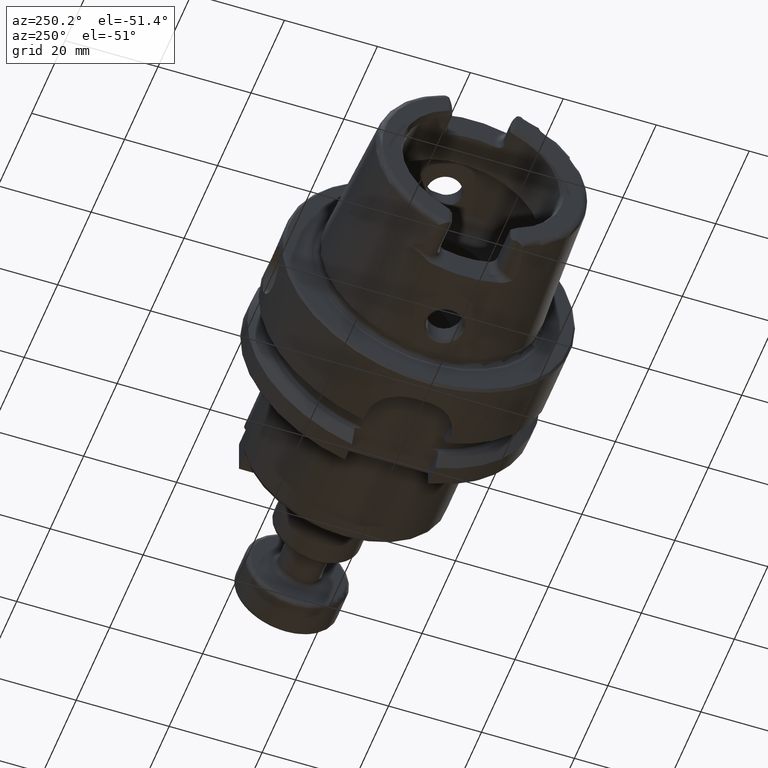
[diagram: clean part render]
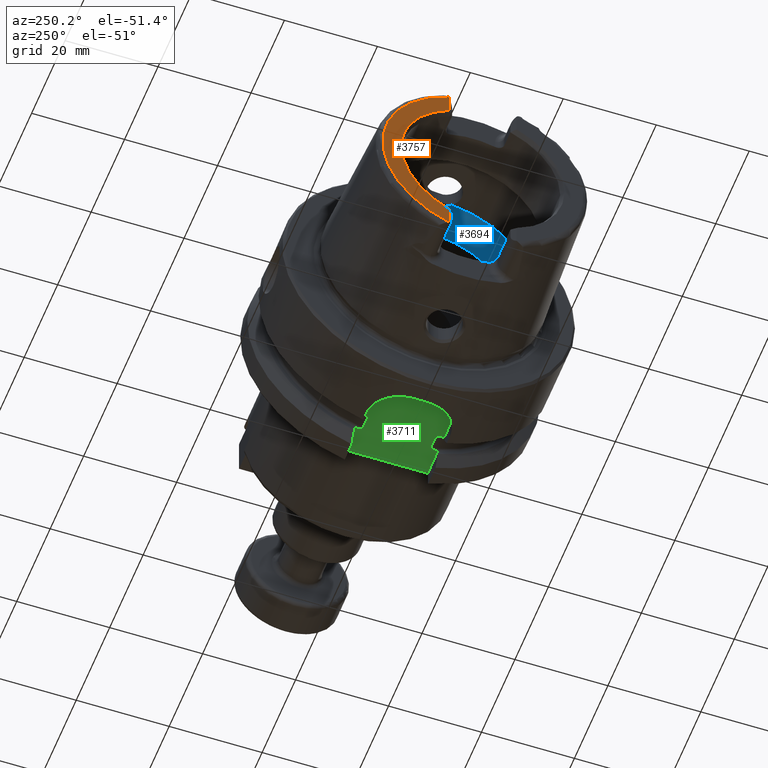
[diagram: same view with three faces highlighted in distinct colors, each labeled with its STEP entity id]
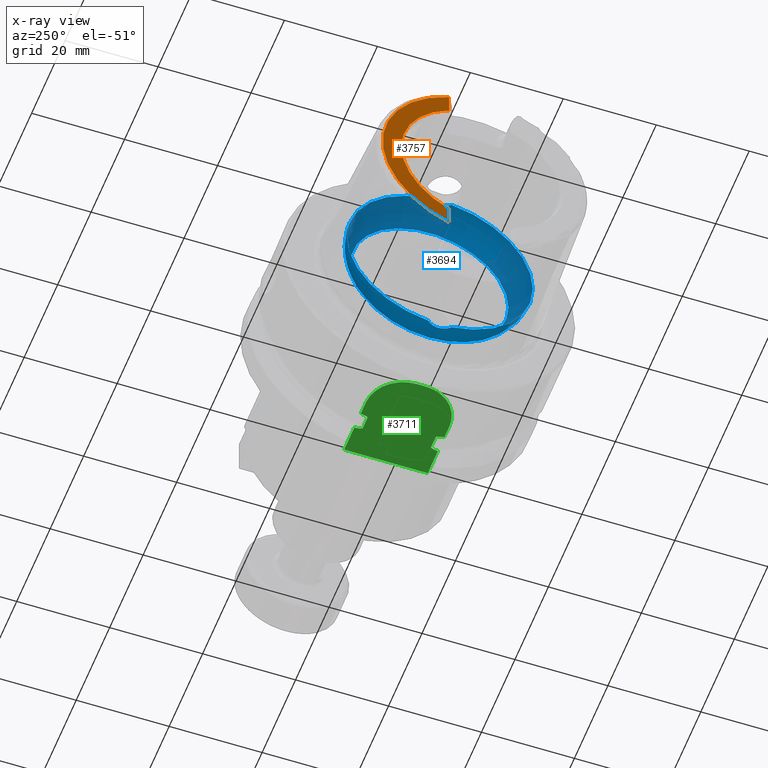
[diagram: x-ray of the same camera — body ghosted, the three highlighted faces saturated]
A machine part, auxiliary view with three faces highlighted in distinct colors.
The next image is the same camera in x-ray (body ghosted, the three faces saturated) — at least one of them is partly hidden behind the body in this view.
Their STEP definitions:

[orange] entity #3757 — the highlighted planar face has unit normal (-1, 0, 0).
#746=PLANE('',#4254);
#954=FACE_OUTER_BOUND('',#1156,.T.);
#1156=EDGE_LOOP('',(#3302,#3303,#3304,#3305,#3306,#3307));
#1289=LINE('',#5944,#1483);
#1299=LINE('',#6037,#1493);
#1483=VECTOR('',#4736,10.);
#1493=VECTOR('',#4774,10.);
#1678=CIRCLE('',#4102,2.88);
#1684=CIRCLE('',#4117,2.88);
#1752=CIRCLE('',#4253,17.5773502691896);
#1753=CIRCLE('',#4255,21.5760400159857);
#1938=VERTEX_POINT('',#5937);
#1941=VERTEX_POINT('',#5942);
#1944=VERTEX_POINT('',#5952);
#1959=VERTEX_POINT('',#6034);
#1960=VERTEX_POINT('',#6036);
#1965=VERTEX_POINT('',#6055);
#2287=EDGE_CURVE('',#1941,#1938,#1289,.T.);
#2291=EDGE_CURVE('',#1944,#1938,#1678,.T.);
#2309=EDGE_CURVE('',#1959,#1960,#1299,.T.);
#2316=EDGE_CURVE('',#1959,#1965,#1684,.T.);
#2511=EDGE_CURVE('',#1960,#1941,#1752,.T.);
#2512=EDGE_CURVE('',#1944,#1965,#1753,.T.);
#3302=ORIENTED_EDGE('',*,*,#2287,.F.);
#3303=ORIENTED_EDGE('',*,*,#2511,.F.);
#3304=ORIENTED_EDGE('',*,*,#2309,.F.);
#3305=ORIENTED_EDGE('',*,*,#2316,.T.);
#3306=ORIENTED_EDGE('',*,*,#2512,.F.);
#3307=ORIENTED_EDGE('',*,*,#2291,.T.);
#3757=ADVANCED_FACE('',(#954),#746,.T.);
#4102=AXIS2_PLACEMENT_3D('',#5953,#4744,#4745);
#4117=AXIS2_PLACEMENT_3D('',#6068,#4783,#4784);
#4253=AXIS2_PLACEMENT_3D('',#7184,#5118,#5119);
#4254=AXIS2_PLACEMENT_3D('',#7185,#5120,#5121);
#4255=AXIS2_PLACEMENT_3D('',#7186,#5122,#5123);
#4736=DIRECTION('',(0.,0.,-1.));
#4744=DIRECTION('center_axis',(-1.,0.,0.));
#4745=DIRECTION('ref_axis',(0.,-0.453346760926793,0.891334232685576));
#4774=DIRECTION('',(0.,1.58830189502884E-16,-1.));
#4783=DIRECTION('center_axis',(-1.,0.,0.));
#4784=DIRECTION('ref_axis',(0.,1.,0.));
#5118=DIRECTION('center_axis',(-1.,0.,0.));
#5119=DIRECTION('ref_axis',(0.,-1.,0.));
#5120=DIRECTION('center_axis',(-1.,0.,0.));
#5121=DIRECTION('ref_axis',(0.,0.,1.));
#5122=DIRECTION('center_axis',(1.,0.,0.));
#5123=DIRECTION('ref_axis',(0.,0.,-1.));
#5937=CARTESIAN_POINT('',(-32.,7.27,-20.1717424229271));
#5942=CARTESIAN_POINT('',(-32.,7.27,-16.003447831195));
#5944=CARTESIAN_POINT('',(-32.,7.27,-5.5));
#5952=CARTESIAN_POINT('',(-32.,7.39118810947246,-20.2705658801576));
#5953=CARTESIAN_POINT('Origin',(-32.,9.15,-17.99));
#6034=CARTESIAN_POINT('',(-32.,7.27,20.1717424229271));
#6036=CARTESIAN_POINT('',(-32.,7.27,16.003447831195));
#6037=CARTESIAN_POINT('',(-32.,7.27,8.995));
#6055=CARTESIAN_POINT('',(-32.,7.39118810947246,20.2705658801576));
#6068=CARTESIAN_POINT('Origin',(-32.,9.15,17.99));
#7184=CARTESIAN_POINT('Origin',(-32.,0.,0.));
#7185=CARTESIAN_POINT('Origin',(-32.,21.5760400159857,0.));
#7186=CARTESIAN_POINT('Origin',(-32.,0.,0.));

[blue] entity #3694 — the highlighted toroidal blend (fillet) surface has major radius 12 mm and minor (blend) radius 8 mm.
#593=TOROIDAL_SURFACE('',#4134,12.,8.);
#641=B_SPLINE_CURVE_WITH_KNOTS('',3,(#6343,#6344,#6345,#6346,#6347,#6348,
#6349,#6350,#6351,#6352,#6353,#6354),.UNSPECIFIED.,.F.,.F.,(4,2,2,2,2,4),
(-0.560647090003115,-0.432465132423936,-0.371738630353782,-0.32053783623797,
-0.287500355516274,-0.280385270121909),.UNSPECIFIED.);
#643=B_SPLINE_CURVE_WITH_KNOTS('',3,(#6387,#6388,#6389,#6390,#6391,#6392,
#6393,#6394,#6395,#6396),.UNSPECIFIED.,.F.,.F.,(4,2,2,2,4),(-0.280385270121909,
-0.256917987419631,-0.21744735037608,-0.138661357565599,0.),
 .UNSPECIFIED.);
#646=B_SPLINE_CURVE_WITH_KNOTS('',3,(#6512,#6513,#6514,#6515,#6516,#6517,
#6518,#6519,#6520,#6521,#6522,#6523),.UNSPECIFIED.,.F.,.F.,(4,2,2,2,2,4),
(-0.560647090003256,-0.432465132424011,-0.371738630353825,-0.32053783623799,
-0.287500355516289,-0.280385270121924),.UNSPECIFIED.);
#648=B_SPLINE_CURVE_WITH_KNOTS('',3,(#6556,#6557,#6558,#6559,#6560,#6561,
#6562,#6563,#6564,#6565),.UNSPECIFIED.,.F.,.F.,(4,2,2,2,4),(-0.280385270121924,
-0.256917987419636,-0.217447350376074,-0.138661357565593,0.),
 .UNSPECIFIED.);
#891=FACE_OUTER_BOUND('',#1092,.T.);
#1092=EDGE_LOOP('',(#2955,#2956,#2957,#2958,#2959,#2960,#2961,#2962,#2963,
#2964,#2965));
#1691=CIRCLE('',#4129,20.);
#1694=CIRCLE('',#4132,20.);
#1695=CIRCLE('',#4133,20.);
#1696=CIRCLE('',#4135,17.);
#1697=CIRCLE('',#4136,17.);
#1698=CIRCLE('',#4137,8.);
#1981=VERTEX_POINT('',#6340);
#1982=VERTEX_POINT('',#6342);
#1983=VERTEX_POINT('',#6355);
#1986=VERTEX_POINT('',#6510);
#1987=VERTEX_POINT('',#6511);
#1988=VERTEX_POINT('',#6524);
#1989=VERTEX_POINT('',#6568);
#1992=VERTEX_POINT('',#6578);
#1993=VERTEX_POINT('',#6579);
#2340=EDGE_CURVE('',#1982,#1981,#641,.T.);
#2342=EDGE_CURVE('',#1981,#1983,#643,.T.);
#2346=EDGE_CURVE('',#1986,#1987,#646,.T.);
#2348=EDGE_CURVE('',#1987,#1988,#648,.T.);
#2350=EDGE_CURVE('',#1989,#1986,#1691,.T.);
#2354=EDGE_CURVE('',#1983,#1989,#1694,.T.);
#2355=EDGE_CURVE('',#1988,#1982,#1695,.T.);
#2356=EDGE_CURVE('',#1992,#1993,#1696,.T.);
#2357=EDGE_CURVE('',#1993,#1992,#1697,.T.);
#2358=EDGE_CURVE('',#1993,#1981,#1698,.T.);
#2955=ORIENTED_EDGE('',*,*,#2356,.F.);
#2956=ORIENTED_EDGE('',*,*,#2357,.F.);
#2957=ORIENTED_EDGE('',*,*,#2358,.T.);
#2958=ORIENTED_EDGE('',*,*,#2342,.T.);
#2959=ORIENTED_EDGE('',*,*,#2354,.T.);
#2960=ORIENTED_EDGE('',*,*,#2350,.T.);
#2961=ORIENTED_EDGE('',*,*,#2346,.T.);
#2962=ORIENTED_EDGE('',*,*,#2348,.T.);
#2963=ORIENTED_EDGE('',*,*,#2355,.T.);
#2964=ORIENTED_EDGE('',*,*,#2340,.T.);
#2965=ORIENTED_EDGE('',*,*,#2358,.F.);
#3694=ADVANCED_FACE('',(#891),#593,.F.);
#4129=AXIS2_PLACEMENT_3D('',#6569,#4814,#4815);
#4132=AXIS2_PLACEMENT_3D('',#6575,#4821,#4822);
#4133=AXIS2_PLACEMENT_3D('',#6576,#4823,#4824);
#4134=AXIS2_PLACEMENT_3D('',#6577,#4825,#4826);
#4135=AXIS2_PLACEMENT_3D('',#6580,#4827,#4828);
#4136=AXIS2_PLACEMENT_3D('',#6581,#4829,#4830);
#4137=AXIS2_PLACEMENT_3D('',#6582,#4831,#4832);
#4814=DIRECTION('center_axis',(-1.,0.,0.));
#4815=DIRECTION('ref_axis',(0.,0.,1.));
#4821=DIRECTION('center_axis',(-1.,0.,0.));
#4822=DIRECTION('ref_axis',(0.,0.,1.));
#4823=DIRECTION('center_axis',(-1.,0.,0.));
#4824=DIRECTION('ref_axis',(0.,0.,1.));
#4825=DIRECTION('center_axis',(-1.,0.,0.));
#4826=DIRECTION('ref_axis',(0.,0.,1.));
#4827=DIRECTION('center_axis',(-1.,0.,0.));
#4828=DIRECTION('ref_axis',(0.,0.,1.));
#4829=DIRECTION('center_axis',(-1.,0.,0.));
#4830=DIRECTION('ref_axis',(0.,0.,1.));
#4831=DIRECTION('center_axis',(0.,1.,-1.22464679914735E-16));
#4832=DIRECTION('ref_axis',(0.,-1.22464679914735E-16,-1.));
#6340=CARTESIAN_POINT('',(-5.25,3.07683831259085E-16,-19.9378825251564));
#6342=CARTESIAN_POINT('',(-6.2449979983984,2.54410376580264,-19.8375284758165));
#6343=CARTESIAN_POINT('Ctrl Pts',(-6.2449979983984,2.54410376580263,-19.8375284758165));
#6344=CARTESIAN_POINT('Ctrl Pts',(-5.9563832733696,2.23156378381208,-19.877610794847));
#6345=CARTESIAN_POINT('Ctrl Pts',(-5.72238184052007,1.87139505615745,-19.9007586679726));
#6346=CARTESIAN_POINT('Ctrl Pts',(-5.47415257397377,1.29299577523533,-19.9221291461079));
#6347=CARTESIAN_POINT('Ctrl Pts',(-5.40951125063364,1.10084807786171,-19.9269865934584));
#6348=CARTESIAN_POINT('Ctrl Pts',(-5.31953029252225,0.738763665580492,-19.9333991732415));
#6349=CARTESIAN_POINT('Ctrl Pts',(-5.28971989928313,0.57048989328573,-19.9353426103026));
#6350=CARTESIAN_POINT('Ctrl Pts',(-5.25970604483208,0.291260075331645,-19.9372753146995));
#6351=CARTESIAN_POINT('Ctrl Pts',(-5.25276504295341,0.181279004510485,-19.9377089305339));
#6352=CARTESIAN_POINT('Ctrl Pts',(-5.25022501552319,0.0474369436209427,
-19.9378684144199));
#6353=CARTESIAN_POINT('Ctrl Pts',(-5.25,0.0237178817918345,-19.9378825251564));
#6354=CARTESIAN_POINT('Ctrl Pts',(-5.25,1.73633857888389E-16,-19.9378825251564));
#6355=CARTESIAN_POINT('',(-6.2449979983984,-2.54410376580264,-19.8375284758165));
#6387=CARTESIAN_POINT('Ctrl Pts',(-5.25,1.73633857888389E-16,-19.9378825251564));
#6388=CARTESIAN_POINT('Ctrl Pts',(-5.25,-0.0782273446147222,-19.9378825251564));
#6389=CARTESIAN_POINT('Ctrl Pts',(-5.25244785081342,-0.15644185230388,-19.9377296492436));
#6390=CARTESIAN_POINT('Ctrl Pts',(-5.26557067654327,-0.365860616871457,
-19.9368989370107));
#6391=CARTESIAN_POINT('Ctrl Pts',(-5.2807081654794,-0.496671474530444,-19.9359382432917));
#6392=CARTESIAN_POINT('Ctrl Pts',(-5.34656166936447,-0.885366242555149,
-19.9315392091305));
#6393=CARTESIAN_POINT('Ctrl Pts',(-5.41752174824152,-1.13897710923821,-19.9266508951874));
#6394=CARTESIAN_POINT('Ctrl Pts',(-5.68473945553282,-1.81246400136134,-19.9044561094296));
#6395=CARTESIAN_POINT('Ctrl Pts',(-5.93280828188796,-2.20603449935731,-19.880884849314));
#6396=CARTESIAN_POINT('Ctrl Pts',(-6.2449979983984,-2.54410376580263,-19.8375284758165));
#6510=CARTESIAN_POINT('',(-6.2449979983984,-2.54410376580264,19.8375284758165));
#6511=CARTESIAN_POINT('',(-5.25,4.81156178856766E-16,19.9378825251564));
#6512=CARTESIAN_POINT('Ctrl Pts',(-6.2449979983984,-2.54410376580264,19.8375284758165));
#6513=CARTESIAN_POINT('Ctrl Pts',(-5.9563832733696,-2.23156378381209,19.877610794847));
#6514=CARTESIAN_POINT('Ctrl Pts',(-5.72238184052007,-1.87139505615746,19.9007586679726));
#6515=CARTESIAN_POINT('Ctrl Pts',(-5.47415257397376,-1.29299577523533,19.9221291461079));
#6516=CARTESIAN_POINT('Ctrl Pts',(-5.40951125063363,-1.10084807786172,19.9269865934584));
#6517=CARTESIAN_POINT('Ctrl Pts',(-5.31953029252225,-0.738763665580501,
19.9333991732415));
#6518=CARTESIAN_POINT('Ctrl Pts',(-5.28971989928313,-0.570489893285745,
19.9353426103026));
#6519=CARTESIAN_POINT('Ctrl Pts',(-5.25970604483207,-0.291260075331669,
19.9372753146995));
#6520=CARTESIAN_POINT('Ctrl Pts',(-5.2527650429534,-0.181279004510531,19.9377089305339));
#6521=CARTESIAN_POINT('Ctrl Pts',(-5.25022501552319,-0.0474369436209401,
19.9378684144199));
#6522=CARTESIAN_POINT('Ctrl Pts',(-5.25,-0.0237178817918311,19.9378825251564));
#6523=CARTESIAN_POINT('Ctrl Pts',(-5.25,5.15920899939407E-16,19.9378825251564));
#6524=CARTESIAN_POINT('',(-6.2449979983984,2.54410376580264,19.8375284758165));
#6556=CARTESIAN_POINT('Ctrl Pts',(-5.25,5.15920899939407E-16,19.9378825251564));
#6557=CARTESIAN_POINT('Ctrl Pts',(-5.25,0.0782273446147462,19.9378825251564));
#6558=CARTESIAN_POINT('Ctrl Pts',(-5.25244785081342,0.156441852303891,19.9377296492436));
#6559=CARTESIAN_POINT('Ctrl Pts',(-5.26557067654326,0.36586061687142,19.9368989370107));
#6560=CARTESIAN_POINT('Ctrl Pts',(-5.28070816547939,0.496671474530425,19.9359382432917));
#6561=CARTESIAN_POINT('Ctrl Pts',(-5.34656166936446,0.885366242555101,19.9315392091305));
#6562=CARTESIAN_POINT('Ctrl Pts',(-5.41752174824151,1.13897710923819,19.9266508951874));
#6563=CARTESIAN_POINT('Ctrl Pts',(-5.68473945553283,1.81246400136138,19.9044561094296));
#6564=CARTESIAN_POINT('Ctrl Pts',(-5.93280828188797,2.20603449935733,19.880884849314));
#6565=CARTESIAN_POINT('Ctrl Pts',(-6.2449979983984,2.54410376580264,19.8375284758165));
#6568=CARTESIAN_POINT('',(-6.2449979983984,-20.,2.44929359829471E-15));
#6569=CARTESIAN_POINT('Origin',(-6.2449979983984,0.,0.));
#6575=CARTESIAN_POINT('Origin',(-6.2449979983984,0.,0.));
#6576=CARTESIAN_POINT('Origin',(-6.2449979983984,0.,0.));
#6577=CARTESIAN_POINT('Origin',(-6.2449979983984,0.,0.));
#6578=CARTESIAN_POINT('',(0.,-17.,2.0818995585505E-15));
#6579=CARTESIAN_POINT('',(0.,-2.0818995585505E-15,-17.));
#6580=CARTESIAN_POINT('Origin',(0.,0.,0.));
#6581=CARTESIAN_POINT('Origin',(0.,0.,0.));
#6582=CARTESIAN_POINT('Origin',(-6.2449979983984,-1.46957615897682E-15,
-12.));

[green] entity #3711 — the highlighted planar face has unit normal (0, 0, 1).
#659=B_SPLINE_CURVE_WITH_KNOTS('',3,(#6809,#6810,#6811,#6812,#6813,#6814,
#6815,#6816,#6817,#6818),.UNSPECIFIED.,.F.,.F.,(4,2,2,2,4),(0.15835931245442,
0.289228035148658,0.316691561230897,0.323545183976989,0.328785692776271),
 .UNSPECIFIED.);
#660=B_SPLINE_CURVE_WITH_KNOTS('',3,(#6830,#6831,#6832,#6833,#6834,#6835,
#6836,#6837,#6838,#6839),.UNSPECIFIED.,.F.,.F.,(4,2,2,2,4),(0.328785692776271,
0.334026201575553,0.340879824321645,0.368343350403884,0.499212073098123),
 .UNSPECIFIED.);
#661=B_SPLINE_CURVE_WITH_KNOTS('',3,(#6842,#6843,#6844,#6845,#6846,#6847,
#6848,#6849,#6850,#6851),.UNSPECIFIED.,.F.,.F.,(4,2,2,2,4),(0.15835931245442,
0.289228035148658,0.316691561230897,0.323545183976988,0.32878569277627),
 .UNSPECIFIED.);
#662=B_SPLINE_CURVE_WITH_KNOTS('',3,(#6853,#6854,#6855,#6856,#6857,#6858,
#6859,#6860,#6861,#6862),.UNSPECIFIED.,.F.,.F.,(4,2,2,2,4),(0.32878569277627,
0.334026201575552,0.340879824321644,0.368343350403882,0.49921207309812),
 .UNSPECIFIED.);
#732=PLANE('',#4169);
#908=FACE_OUTER_BOUND('',#1109,.T.);
#1109=EDGE_LOOP('',(#3048,#3049,#3050,#3051,#3052,#3053,#3054,#3055,#3056,
#3057,#3058,#3059,#3060,#3061));
#1272=LINE('',#5836,#1466);
#1327=LINE('',#6763,#1521);
#1329=LINE('',#6793,#1523);
#1332=LINE('',#6820,#1526);
#1333=LINE('',#6824,#1527);
#1334=LINE('',#6828,#1528);
#1335=LINE('',#6841,#1529);
#1336=LINE('',#6863,#1530);
#1466=VECTOR('',#4657,10.);
#1521=VECTOR('',#4910,10.);
#1523=VECTOR('',#4914,10.);
#1526=VECTOR('',#4919,10.);
#1527=VECTOR('',#4922,10.);
#1528=VECTOR('',#4925,10.);
#1529=VECTOR('',#4926,10.);
#1530=VECTOR('',#4927,10.);
#1714=CIRCLE('',#4170,8.);
#1715=CIRCLE('',#4171,8.);
#1910=VERTEX_POINT('',#5833);
#1911=VERTEX_POINT('',#5835);
#2026=VERTEX_POINT('',#6758);
#2030=VERTEX_POINT('',#6792);
#2034=VERTEX_POINT('',#6807);
#2035=VERTEX_POINT('',#6808);
#2036=VERTEX_POINT('',#6819);
#2037=VERTEX_POINT('',#6821);
#2038=VERTEX_POINT('',#6823);
#2039=VERTEX_POINT('',#6825);
#2040=VERTEX_POINT('',#6827);
#2041=VERTEX_POINT('',#6829);
#2042=VERTEX_POINT('',#6840);
#2043=VERTEX_POINT('',#6852);
#2248=EDGE_CURVE('',#1910,#1911,#1272,.T.);
#2404=EDGE_CURVE('',#2026,#1910,#1327,.T.);
#2409=EDGE_CURVE('',#1911,#2030,#1329,.T.);
#2414=EDGE_CURVE('',#2034,#2035,#659,.T.);
#2415=EDGE_CURVE('',#2036,#2034,#1332,.T.);
#2416=EDGE_CURVE('',#2037,#2036,#1714,.T.);
#2417=EDGE_CURVE('',#2038,#2037,#1333,.T.);
#2418=EDGE_CURVE('',#2039,#2038,#1715,.T.);
#2419=EDGE_CURVE('',#2040,#2039,#1334,.T.);
#2420=EDGE_CURVE('',#2041,#2040,#660,.T.);
#2421=EDGE_CURVE('',#2042,#2041,#1335,.T.);
#2422=EDGE_CURVE('',#2030,#2042,#661,.T.);
#2423=EDGE_CURVE('',#2043,#2026,#662,.T.);
#2424=EDGE_CURVE('',#2035,#2043,#1336,.T.);
#3048=ORIENTED_EDGE('',*,*,#2414,.F.);
#3049=ORIENTED_EDGE('',*,*,#2415,.F.);
#3050=ORIENTED_EDGE('',*,*,#2416,.F.);
#3051=ORIENTED_EDGE('',*,*,#2417,.F.);
#3052=ORIENTED_EDGE('',*,*,#2418,.F.);
#3053=ORIENTED_EDGE('',*,*,#2419,.F.);
#3054=ORIENTED_EDGE('',*,*,#2420,.F.);
#3055=ORIENTED_EDGE('',*,*,#2421,.F.);
#3056=ORIENTED_EDGE('',*,*,#2422,.F.);
#3057=ORIENTED_EDGE('',*,*,#2409,.F.);
#3058=ORIENTED_EDGE('',*,*,#2248,.F.);
#3059=ORIENTED_EDGE('',*,*,#2404,.F.);
#3060=ORIENTED_EDGE('',*,*,#2423,.F.);
#3061=ORIENTED_EDGE('',*,*,#2424,.F.);
#3711=ADVANCED_FACE('',(#908),#732,.F.);
#4169=AXIS2_PLACEMENT_3D('',#6806,#4917,#4918);
#4170=AXIS2_PLACEMENT_3D('',#6822,#4920,#4921);
#4171=AXIS2_PLACEMENT_3D('',#6826,#4923,#4924);
#4657=DIRECTION('',(0.,1.,0.));
#4910=DIRECTION('',(1.,-2.56205313375036E-16,0.));
#4914=DIRECTION('',(-1.,2.56205313375036E-16,0.));
#4917=DIRECTION('center_axis',(0.,0.,1.));
#4918=DIRECTION('ref_axis',(1.,0.,0.));
#4919=DIRECTION('',(1.,-2.56205313375036E-16,0.));
#4920=DIRECTION('center_axis',(0.,0.,1.));
#4921=DIRECTION('ref_axis',(-1.,-2.42861286636753E-16,0.));
#4922=DIRECTION('',(0.,-1.,0.));
#4923=DIRECTION('center_axis',(0.,0.,1.));
#4924=DIRECTION('ref_axis',(0.,1.,0.));
#4925=DIRECTION('',(-1.,2.56205313375036E-16,0.));
#4926=DIRECTION('',(-1.,0.,0.));
#4927=DIRECTION('',(1.,0.,0.));
#5833=CARTESIAN_POINT('',(26.,-9.,-26.5));
#5835=CARTESIAN_POINT('',(26.,9.,-26.5));
#5836=CARTESIAN_POINT('',(26.,1.94289029309402E-15,-26.5));
#6758=CARTESIAN_POINT('',(19.8748205133158,-9.,-26.5));
#6763=CARTESIAN_POINT('',(13.,-9.,-26.5));
#6792=CARTESIAN_POINT('',(19.8748205133158,9.,-26.5));
#6793=CARTESIAN_POINT('',(26.,9.,-26.5));
#6806=CARTESIAN_POINT('Origin',(15.5,3.88578058618805E-15,-26.5));
#6807=CARTESIAN_POINT('',(16.1251794866842,-9.,-26.5));
#6808=CARTESIAN_POINT('',(16.625,-7.34846922834952,-26.5));
#6809=CARTESIAN_POINT('Ctrl Pts',(16.1251794866842,-9.,-26.5));
#6810=CARTESIAN_POINT('Ctrl Pts',(16.12898241235,-8.55877260788573,-26.5));
#6811=CARTESIAN_POINT('Ctrl Pts',(16.1819334034884,-8.04136347440828,-26.5));
#6812=CARTESIAN_POINT('Ctrl Pts',(16.3906456489289,-7.5566112023157,-26.5));
#6813=CARTESIAN_POINT('Ctrl Pts',(16.4411490019356,-7.4590543697872,-26.5));
#6814=CARTESIAN_POINT('Ctrl Pts',(16.5270295504762,-7.38349170057081,-26.5));
#6815=CARTESIAN_POINT('Ctrl Pts',(16.5496994821687,-7.36807649661538,-26.5));
#6816=CARTESIAN_POINT('Ctrl Pts',(16.587038394856,-7.35287762173868,-26.5));
#6817=CARTESIAN_POINT('Ctrl Pts',(16.6075316373357,-7.34846922834952,-26.5));
#6818=CARTESIAN_POINT('Ctrl Pts',(16.625,-7.34846922834952,-26.5));
#6819=CARTESIAN_POINT('',(13.,-9.,-26.5));
#6820=CARTESIAN_POINT('',(13.,-9.,-26.5));
#6821=CARTESIAN_POINT('',(5.,-0.999999999999999,-26.5));
#6822=CARTESIAN_POINT('Origin',(13.,-0.999999999999997,-26.5));
#6823=CARTESIAN_POINT('',(5.,1.,-26.5));
#6824=CARTESIAN_POINT('',(5.,1.,-26.5));
#6825=CARTESIAN_POINT('',(13.,9.00000000000001,-26.5));
#6826=CARTESIAN_POINT('Origin',(13.,1.,-26.5));
#6827=CARTESIAN_POINT('',(16.1251794866842,9.,-26.5));
#6828=CARTESIAN_POINT('',(26.,9.,-26.5));
#6829=CARTESIAN_POINT('',(16.625,7.34846922834952,-26.5));
#6830=CARTESIAN_POINT('Ctrl Pts',(16.625,7.34846922834952,-26.5));
#6831=CARTESIAN_POINT('Ctrl Pts',(16.6075316373357,7.34846922834952,-26.5));
#6832=CARTESIAN_POINT('Ctrl Pts',(16.587038394856,7.35287762173868,-26.5));
#6833=CARTESIAN_POINT('Ctrl Pts',(16.5496994821687,7.36807649661538,-26.5));
#6834=CARTESIAN_POINT('Ctrl Pts',(16.5270295504762,7.38349170057081,-26.5));
#6835=CARTESIAN_POINT('Ctrl Pts',(16.4411490019356,7.4590543697872,-26.5));
#6836=CARTESIAN_POINT('Ctrl Pts',(16.3906456489289,7.5566112023157,-26.5));
#6837=CARTESIAN_POINT('Ctrl Pts',(16.1819334034884,8.04136347440828,-26.5));
#6838=CARTESIAN_POINT('Ctrl Pts',(16.12898241235,8.55877260788573,-26.5));
#6839=CARTESIAN_POINT('Ctrl Pts',(16.1251794866842,9.,-26.5));
#6840=CARTESIAN_POINT('',(19.375,7.34846922834952,-26.5));
#6841=CARTESIAN_POINT('',(18.,7.34846922834952,-26.5));
#6842=CARTESIAN_POINT('Ctrl Pts',(19.8748205133158,9.,-26.5));
#6843=CARTESIAN_POINT('Ctrl Pts',(19.87101758765,8.55877260788573,-26.5));
#6844=CARTESIAN_POINT('Ctrl Pts',(19.8180665965116,8.04136347440828,-26.5));
#6845=CARTESIAN_POINT('Ctrl Pts',(19.6093543510711,7.5566112023157,-26.5));
#6846=CARTESIAN_POINT('Ctrl Pts',(19.5588509980644,7.45905436978719,-26.5));
#6847=CARTESIAN_POINT('Ctrl Pts',(19.4729704495238,7.38349170057082,-26.5));
#6848=CARTESIAN_POINT('Ctrl Pts',(19.4503005178313,7.3680764966154,-26.5));
#6849=CARTESIAN_POINT('Ctrl Pts',(19.412961605144,7.35287762173869,-26.5));
#6850=CARTESIAN_POINT('Ctrl Pts',(19.3924683626643,7.34846922834952,-26.5));
#6851=CARTESIAN_POINT('Ctrl Pts',(19.375,7.34846922834952,-26.5));
#6852=CARTESIAN_POINT('',(19.375,-7.34846922834952,-26.5));
#6853=CARTESIAN_POINT('Ctrl Pts',(19.375,-7.34846922834952,-26.5));
#6854=CARTESIAN_POINT('Ctrl Pts',(19.3924683626643,-7.34846922834952,-26.5));
#6855=CARTESIAN_POINT('Ctrl Pts',(19.412961605144,-7.35287762173869,-26.5));
#6856=CARTESIAN_POINT('Ctrl Pts',(19.4503005178313,-7.3680764966154,-26.5));
#6857=CARTESIAN_POINT('Ctrl Pts',(19.4729704495238,-7.38349170057082,-26.5));
#6858=CARTESIAN_POINT('Ctrl Pts',(19.5588509980644,-7.45905436978719,-26.5));
#6859=CARTESIAN_POINT('Ctrl Pts',(19.6093543510711,-7.5566112023157,-26.5));
#6860=CARTESIAN_POINT('Ctrl Pts',(19.8180665965116,-8.04136347440828,-26.5));
#6861=CARTESIAN_POINT('Ctrl Pts',(19.87101758765,-8.55877260788573,-26.5));
#6862=CARTESIAN_POINT('Ctrl Pts',(19.8748205133158,-9.,-26.5));
#6863=CARTESIAN_POINT('',(18.,-7.34846922834952,-26.5));